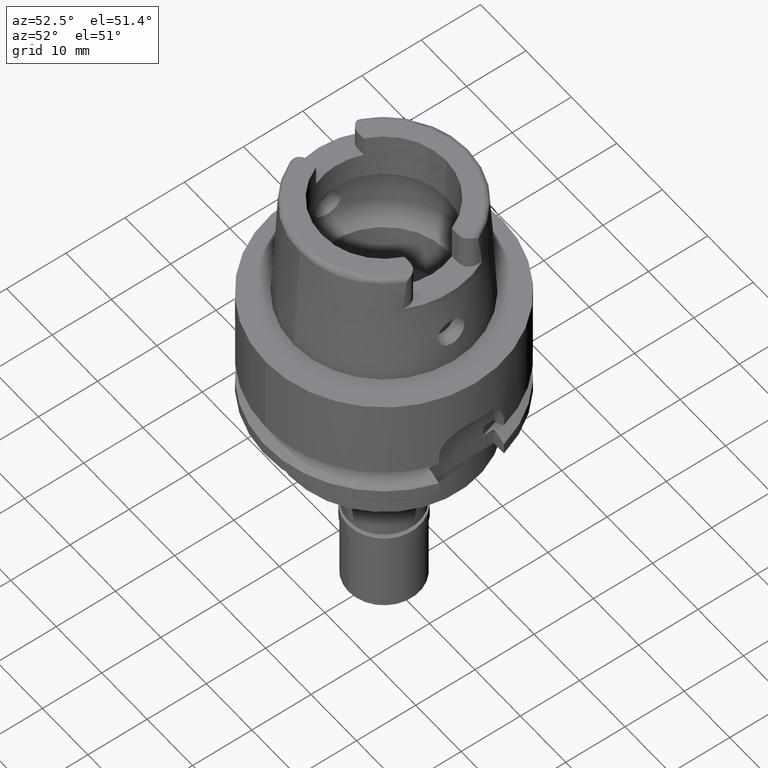
[diagram: clean part render]
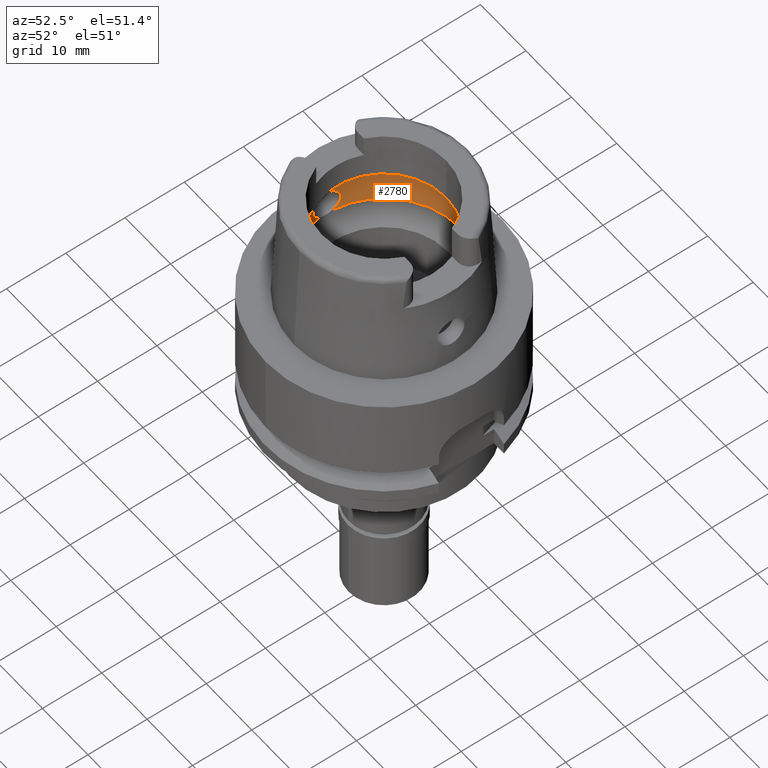
[diagram: same view with one face highlighted and labeled with its STEP entity id]
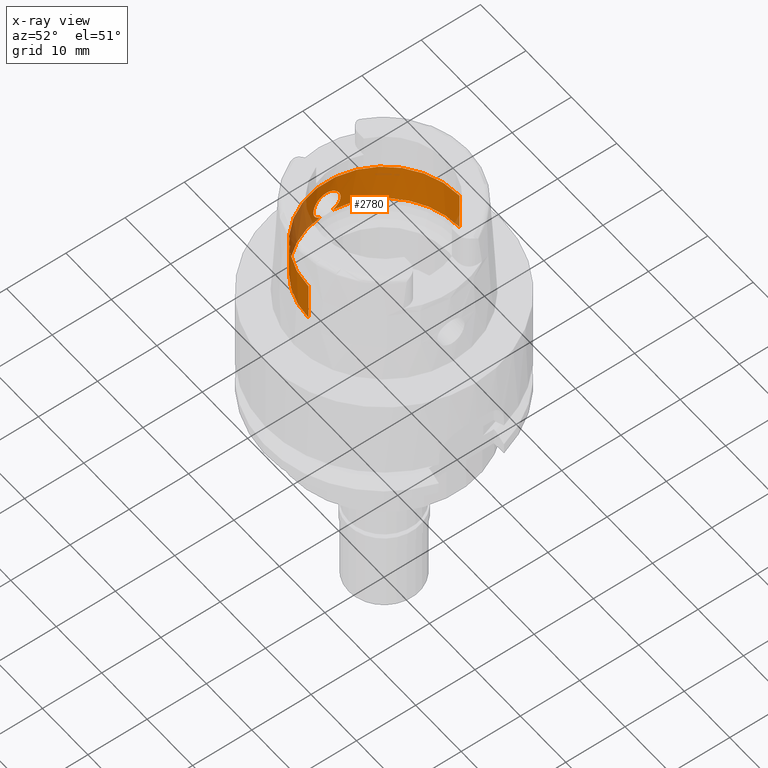
[diagram: x-ray of the same camera — body ghosted, the highlighted face saturated]
A machine part, auxiliary view. The second image highlights one B-rep face of the part: STEP entity #2780.
The next image is the same camera in x-ray: the body ghosted, the highlighted face saturated — about 11% of this face is hidden behind the body in this view.
In plain terms, the highlighted cylindrical surface (partial cylindrical patch) has radius 12.75 mm, axis along (0, 0, 1).
Its self-contained STEP definition (entity closure, byte-faithful):
#19 = CARTESIAN_POINT ( 'NONE',  ( -12.54148017970318207, -2.296657985021727910, 5.872034827122684320 ) ) ;
#36 = AXIS2_PLACEMENT_3D ( 'NONE', #4328, #3968, #5199 ) ;
#60 = DIRECTION ( 'NONE',  ( 0.0000000000000000000, 5.251609281303000335E-14, 1.000000000000000000 ) ) ;
#66 = LINE ( 'NONE', #358, #986 ) ;
#162 = CARTESIAN_POINT ( 'NONE',  ( -12.58234815095433490, 2.060967630271303364, 4.978898497668545531 ) ) ;
#212 = CARTESIAN_POINT ( 'NONE',  ( -12.71370925307437005, -0.9657940196729556392, 8.091397405141254495 ) ) ;
#215 = CARTESIAN_POINT ( 'NONE',  ( -12.67342107082569136, 1.396795518636539279, 4.168152430983958823 ) ) ;
#243 = CARTESIAN_POINT ( 'NONE',  ( -12.58088779415982295, 2.069786624219965621, 4.996984874372552454 ) ) ;
#259 = CARTESIAN_POINT ( 'NONE',  ( -12.74252708845689241, -0.4388710766372737049, 8.258650815778116439 ) ) ;
#262 = CARTESIAN_POINT ( 'NONE',  ( -12.54081290418515415, 2.300265515362289737, 5.877896904667117894 ) ) ;
#286 = CARTESIAN_POINT ( 'NONE',  ( -12.74019180359966974, -0.5023035908611745981, 8.245431463440205277 ) ) ;
#290 = CARTESIAN_POINT ( 'NONE',  ( -12.68327569418629075, 1.308086619414797092, 7.897773305990880566 ) ) ;
#311 = CARTESIAN_POINT ( 'NONE',  ( -12.60091537316904464, -1.944102522079118822, 7.229014269558279970 ) ) ;
#314 = CARTESIAN_POINT ( 'NONE',  ( -12.72734841511456239, 0.7591135067273639958, 8.171132231329629292 ) ) ;
#334 = CARTESIAN_POINT ( 'NONE',  ( -12.55239739492236239, -2.236088535620658124, 6.538626042431965324 ) ) ;
#338 = CARTESIAN_POINT ( 'NONE',  ( -12.66928323577454663, 1.432365327722411541, 7.799539186262888890 ) ) ;
#358 = CARTESIAN_POINT ( 'NONE',  ( 0.0000000000000000000, -12.75000000000000000, 3.933312163512999504 ) ) ;
#359 = CARTESIAN_POINT ( 'NONE',  ( -12.70998420979999999, -1.009356917307999923, 3.933312163512999504 ) ) ;
#362 = CARTESIAN_POINT ( 'NONE',  ( -12.64071954532341735, -1.665643291147724581, 7.586129303350567454 ) ) ;
#394 = CARTESIAN_POINT ( 'NONE',  ( -12.69524213687614989, -1.182604493118782241, 4.023122441451612019 ) ) ;
#397 = CARTESIAN_POINT ( 'NONE',  ( -12.60074742617265464, 1.945194591811169493, 7.227284890344897406 ) ) ;
#433 = DIRECTION ( 'NONE',  ( 0.0000000000000000000, -5.251609281303000335E-14, 1.000000000000000000 ) ) ;
#471 = ORIENTED_EDGE ( 'NONE', *, *, #1588, .T. ) ;
#556 = EDGE_CURVE ( 'NONE', #3890, #4955, #1530, .T. ) ;
#585 = CYLINDRICAL_SURFACE ( 'NONE', #1228, 12.75000000000000000 ) ;
#609 = CARTESIAN_POINT ( 'NONE',  ( -12.75000000000000355, -0.1232955019582576139, 8.300000000000002487 ) ) ;
#647 = CARTESIAN_POINT ( 'NONE',  ( -12.55025637655821669, 2.248069450114834833, 6.486258590179722283 ) ) ;
#666 = CARTESIAN_POINT ( 'NONE',  ( -12.58703336588032506, 2.032482332563968264, 7.077119839792592515 ) ) ;
#690 = CARTESIAN_POINT ( 'NONE',  ( -12.72795728128235559, -0.7488340797194402709, 8.174693640447596721 ) ) ;
#719 = CARTESIAN_POINT ( 'NONE',  ( -12.72850808154838376, -0.7394332862062809042, 8.177913538725009701 ) ) ;
#745 = CARTESIAN_POINT ( 'NONE',  ( -12.57962204570575437, -2.077434335363026907, 5.012946770202115765 ) ) ;
#750 = CARTESIAN_POINT ( 'NONE',  ( -12.63406899693238294, 1.715452932363266569, 7.532072049116044887 ) ) ;
#769 = CARTESIAN_POINT ( 'NONE',  ( -12.55912664086201680, -2.198379263546960338, 5.320866996806764782 ) ) ;
#772 = CARTESIAN_POINT ( 'NONE',  ( -12.69473673177439466, 1.189557444804520081, 7.972700653167720475 ) ) ;
#792 = CARTESIAN_POINT ( 'NONE',  ( -12.61237958801630832, -1.868489752136395898, 7.341565194408953943 ) ) ;
#819 = CARTESIAN_POINT ( 'NONE',  ( -12.55364315353211957, -2.229124748674669032, 6.566756391729422049 ) ) ;
#936 = CARTESIAN_POINT ( 'NONE',  ( 0.0000000000000000000, 0.0000000000000000000, -59.79999999999999716 ) ) ;
#968 = CARTESIAN_POINT ( 'NONE',  ( -12.59485593607884191, 1.984425298710568608, 4.835953568459093077 ) ) ;
#972 = VERTEX_POINT ( 'NONE', #1899 ) ;
#986 = VECTOR ( 'NONE', #433, 1000.000000000000000 ) ;
#987 = CARTESIAN_POINT ( 'NONE',  ( -12.70998420979999999, 1.009356917307999923, 3.933312163512999504 ) ) ;
#997 = CARTESIAN_POINT ( 'NONE',  ( -12.54457947337423462, 2.279515789508200552, 5.692220183645891218 ) ) ;
#1020 = CARTESIAN_POINT ( 'NONE',  ( -12.70998420979999999, 1.009356917307999923, 3.933312163512999504 ) ) ;
#1043 = CARTESIAN_POINT ( 'NONE',  ( -12.54596000839778114, 2.272073775621781255, 6.358784124242084168 ) ) ;
#1073 = CARTESIAN_POINT ( 'NONE',  ( -12.57489092042872514, 2.106762639285188587, 6.925054285917330965 ) ) ;
#1080 = VERTEX_POINT ( 'NONE', #359 ) ;
#1097 = CARTESIAN_POINT ( 'NONE',  ( -12.75000000000000000, 0.0000000000000000000, 8.300000000000000711 ) ) ;
#1100 = CARTESIAN_POINT ( 'NONE',  ( -12.70919181892019267, 1.018762221139785096, 8.063073491699430662 ) ) ;
#1148 = CARTESIAN_POINT ( 'NONE',  ( -12.56261983430587215, -2.178318896566281193, 5.258837980250286925 ) ) ;
#1155 = CARTESIAN_POINT ( 'NONE',  ( -12.59842913563653077, 1.960190017391717499, 7.203244068961787150 ) ) ;
#1176 = CARTESIAN_POINT ( 'NONE',  ( -12.63496809226845485, -1.708818649349721941, 7.539464926994788208 ) ) ;
#1195 = CARTESIAN_POINT ( 'NONE',  ( 0.0000000000000000000, 0.0000000000000000000, 3.933312163512999504 ) ) ;
#1201 = CARTESIAN_POINT ( 'NONE',  ( -12.65275917258536786, -1.571383832252013946, 7.680138149302682571 ) ) ;
#1225 = CARTESIAN_POINT ( 'NONE',  ( -12.55781007688380413, -2.205759636404365676, 6.652340893931214083 ) ) ;
#1228 = AXIS2_PLACEMENT_3D ( 'NONE', #936, #2599, #4722 ) ;
#1265 = LINE ( 'NONE', #2936, #3332 ) ;
#1436 = CARTESIAN_POINT ( 'NONE',  ( -12.55282624754528698, 2.234055926618104149, 5.449449623030155010 ) ) ;
#1454 = CARTESIAN_POINT ( 'NONE',  ( -12.66507753597532115, -1.469358509663974299, 7.770645237010898043 ) ) ;
#1457 = CARTESIAN_POINT ( 'NONE',  ( -12.57979453712135154, 2.076392291241293542, 5.010751046610106840 ) ) ;
#1476 = CARTESIAN_POINT ( 'NONE',  ( -12.73074849545827547, -0.7000510758547183743, 8.190983650985206310 ) ) ;
#1511 = CARTESIAN_POINT ( 'NONE',  ( -12.61864162327912986, 1.825725469032277282, 7.399205395910363414 ) ) ;
#1530 = B_SPLINE_CURVE_WITH_KNOTS ( 'NONE', 3,
 ( #1020, #4812, #3963, #215, #1928, #4322, #4345, #1878, #968, #4394, #3558, #2229, #162, #243, #2635, #5193, #1457, #3905, #1826, #1436, #5162, #2687, #4756, #997, #3132, #262, #2661, #3104, #1905, #1043, #2256, #2713, #647, #3581, #3160, #4843, #1073, #4421, #666, #2332, #4017, #1155, #3187, #2828, #397, #1621, #4100, #1511, #1955, #4504, #2356, #3635, #2407, #750, #5278, #4046, #2466, #4966, #5301, #3274, #1537, #4476, #338, #4866, #2854, #2011, #4445, #290, #772, #1100, #2385, #3684, #3213, #2769, #3656, #4889, #314, #5353, #2062, #4075 ),
 .UNSPECIFIED., .F., .F.,
 ( 4, 2, 2, 2, 2, 2, 1, 1, 2, 2, 2, 2, 2, 2, 2, 2, 1, 2, 2, 2, 2, 1, 1, 1, 2, 2, 2, 2, 1, 1, 2, 2, 2, 2, 2, 1, 1, 2, 2, 2, 2, 1, 1, 2, 2, 4 ),
 ( 0.0000000000000000000, 0.06249999999999251987, 0.1249999999999850397, 0.1874999999999775735, 0.2187499999999738265, 0.2343749999999719669, 0.2421874999999710232, 0.2460937499999701628, 0.2480468749999700240, 0.2499999999999699130, 0.3124999999999579225, 0.3437499999999517053, 0.3593749999999485967, 0.3749999999999455436, 0.4374999999999334421, 0.4687499999999271694, 0.4843749999999242828, 0.4921874999999230060, 0.4999999999999217293, 0.5624999999999126254, 0.5937499999999079625, 0.6093749999999056310, 0.6171874999999045208, 0.6210937499999039657, 0.6230468749999039657, 0.6249999999999039657, 0.6562499999999051870, 0.6718749999999056310, 0.6796874999999058531, 0.6835937499999060751, 0.6855468749999060751, 0.6874999999999060751, 0.7187499999999055200, 0.7343749999999051870, 0.7421874999999049649, 0.7460937499999046318, 0.7480468749999044098, 0.7490234374999048539, 0.7499999999999052980, 0.8124999999999323874, 0.8437499999999459321, 0.8593749999999525935, 0.8671874999999557021, 0.8710937499999571454, 0.8749999999999585887, 1.000000000000000000 ),
 .UNSPECIFIED. ) ;
#1533 = CARTESIAN_POINT ( 'NONE',  ( -12.66943899526039274, -1.431011956414761199, 7.800612365376442092 ) ) ;
#1537 = CARTESIAN_POINT ( 'NONE',  ( -12.66795178435076963, 1.443991592244741273, 7.790233384727709876 ) ) ;
#1560 = CARTESIAN_POINT ( 'NONE',  ( -12.54120439842161439, -2.298212068785446149, 5.903875515317918321 ) ) ;
#1588 = EDGE_CURVE ( 'NONE', #3890, #3657, #3529, .T. ) ;
#1592 = CARTESIAN_POINT ( 'NONE',  ( -12.56257850676685095, -2.178740741521114188, 6.739449554181223156 ) ) ;
#1621 = CARTESIAN_POINT ( 'NONE',  ( -12.60522162145990066, 1.916156714429792629, 7.273167380317437036 ) ) ;
#1673 = CARTESIAN_POINT ( 'NONE',  ( -12.63563140623329240, -1.703902752141519317, 7.544904155298002735 ) ) ;
#1675 = CARTESIAN_POINT ( 'NONE',  ( 0.0000000000000000000, 0.0000000000000000000, 10.69831216350999981 ) ) ;
#1747 = CARTESIAN_POINT ( 'NONE',  ( 0.0000000000000000000, 12.75000000000000000, 3.933312163512999504 ) ) ;
#1783 = CARTESIAN_POINT ( 'NONE',  ( -12.75000000000000000, 0.0000000000000000000, 8.300000000000000711 ) ) ;
#1826 = CARTESIAN_POINT ( 'NONE',  ( -12.56187419853418419, 2.182840110083087648, 5.264027543199527592 ) ) ;
#1875 = CARTESIAN_POINT ( 'NONE',  ( -12.68520778266399951, -1.283333305785098633, 7.909000996030330910 ) ) ;
#1878 = CARTESIAN_POINT ( 'NONE',  ( -12.59970419640353256, 1.953912374158201404, 4.784932855592898271 ) ) ;
#1899 = CARTESIAN_POINT ( 'NONE',  ( 0.0000000000000000000, -12.75000000000000000, 10.69831216350999981 ) ) ;
#1905 = CARTESIAN_POINT ( 'NONE',  ( -12.54348375520701708, 2.285854396121656418, 6.262775262223848394 ) ) ;
#1928 = CARTESIAN_POINT ( 'NONE',  ( -12.66002377977506299, 1.516789949124395021, 4.262699921375642020 ) ) ;
#1955 = CARTESIAN_POINT ( 'NONE',  ( -12.62165102803630745, 1.804816494781097180, 7.426155628704304235 ) ) ;
#1979 = CARTESIAN_POINT ( 'NONE',  ( -12.54073783438190759, -2.300885557207824839, 5.999586117959124998 ) ) ;
#2008 = CARTESIAN_POINT ( 'NONE',  ( -12.57168851685723965, -2.125068528179912875, 5.119046469636792551 ) ) ;
#2011 = CARTESIAN_POINT ( 'NONE',  ( -12.66990472515780830, 1.426880942171057320, 7.803887759267862378 ) ) ;
#2036 = CARTESIAN_POINT ( 'NONE',  ( -12.58852658665747626, -2.024334378339336382, 7.101320211410822481 ) ) ;
#2058 = CARTESIAN_POINT ( 'NONE',  ( -12.66031865575811288, -1.514382210868038925, 4.260522311198210232 ) ) ;
#2062 = CARTESIAN_POINT ( 'NONE',  ( -12.74999999999999822, 0.2454129203991414210, 8.300000000000002487 ) ) ;
#2103 = ORIENTED_EDGE ( 'NONE', *, *, #556, .F. ) ;
#2136 = DIRECTION ( 'NONE',  ( 0.0000000000000000000, 1.000000000000000000, 0.0000000000000000000 ) ) ;
#2184 = VERTEX_POINT ( 'NONE', #4959 ) ;
#2229 = CARTESIAN_POINT ( 'NONE',  ( -12.58368079438198528, 2.052912315962793333, 4.962839345020976012 ) ) ;
#2256 = CARTESIAN_POINT ( 'NONE',  ( -12.54737898903669091, 2.264160825312498737, 6.406714995350192510 ) ) ;
#2270 = EDGE_CURVE ( 'NONE', #2552, #1080, #3444, .T. ) ;
#2300 = ORIENTED_EDGE ( 'NONE', *, *, #4741, .F. ) ;
#2308 = CARTESIAN_POINT ( 'NONE',  ( -12.68070979276334320, -1.327630010748268585, 7.878758684082139752 ) ) ;
#2332 = CARTESIAN_POINT ( 'NONE',  ( -12.59098572248810655, 2.007769082100414160, 7.122959970139262076 ) ) ;
#2344 = DIRECTION ( 'NONE',  ( 0.0000000000000000000, 0.0000000000000000000, -1.000000000000000000 ) ) ;
#2356 = CARTESIAN_POINT ( 'NONE',  ( -12.62889673681356939, 1.753233671745248579, 7.488889331161828977 ) ) ;
#2382 = CARTESIAN_POINT ( 'NONE',  ( -12.60227304271632320, -1.935287334250604063, 7.242875625466763445 ) ) ;
#2385 = CARTESIAN_POINT ( 'NONE',  ( -12.71355410309606171, 0.9629638853355878547, 8.089541103009537437 ) ) ;
#2404 = CARTESIAN_POINT ( 'NONE',  ( -12.62085798745405896, -1.810654883468420184, 7.419765259373888533 ) ) ;
#2407 = CARTESIAN_POINT ( 'NONE',  ( -12.63319235934285700, 1.721899587906365658, 7.524823050719082751 ) ) ;
#2430 = CARTESIAN_POINT ( 'NONE',  ( -12.62722194013531229, -1.765924650657525241, 7.475678127646277815 ) ) ;
#2462 = CARTESIAN_POINT ( 'NONE',  ( -12.54286094178943145, -2.289321175210386805, 6.255906219300009674 ) ) ;
#2466 = CARTESIAN_POINT ( 'NONE',  ( -12.65338985473301392, 1.566653324830893146, 7.685165133112471736 ) ) ;
#2483 = CARTESIAN_POINT ( 'NONE',  ( -12.63451869292693530, -1.712138067072594749, 7.535769908466067868 ) ) ;
#2552 = VERTEX_POINT ( 'NONE', #5331 ) ;
#2596 = B_SPLINE_CURVE_WITH_KNOTS ( 'NONE', 3,
 ( #1097, #609, #4441, #259, #286, #3632, #2765, #1476, #5297, #719, #690, #3603, #212, #2706, #2795, #1875, #2308, #3183, #3578, #5246, #3555, #5219, #1533, #4471, #1454, #4809, #1201, #2924, #4942, #362, #4576, #3653, #1673, #1176, #2483, #2430, #2404, #792, #4523, #4071, #4962, #2382, #4122, #311, #5012, #2036, #4987, #4095, #1592, #1225, #2850, #819, #334, #4608, #5324, #2462, #4545, #1979, #1560, #19, #3233, #4152, #3293, #4915, #769, #1148, #3269, #2008, #3710, #2825, #4501, #4175, #745, #3349, #5374, #2058, #3679, #394, #4596, #2873 ),
 .UNSPECIFIED., .F., .F.,
 ( 4, 2, 2, 1, 1, 2, 2, 2, 2, 1, 1, 1, 1, 2, 2, 2, 2, 2, 1, 1, 2, 2, 2, 2, 1, 1, 2, 2, 2, 2, 1, 2, 2, 2, 2, 2, 2, 2, 2, 1, 1, 1, 2, 2, 2, 2, 4 ),
 ( 0.0000000000000000000, 0.06250000000007767398, 0.09375000000011649015, 0.1093750000001357803, 0.1171875000001453837, 0.1210937500001500744, 0.1250000000001547651, 0.1875000000002299272, 0.2187500000002677580, 0.2343750000002866041, 0.2421875000002957912, 0.2460937500003002043, 0.2480468750003022305, 0.2490234375003032852, 0.2500000000003043676, 0.2812500000002912115, 0.2968750000002846612, 0.3046875000002814970, 0.3085937500002799982, 0.3105468750002792211, 0.3115234375002788325, 0.3125000000002784994, 0.3437500000002634559, 0.3593750000002557399, 0.3671875000002519096, 0.3710937500002501888, 0.3730468750002494671, 0.3750000000002486900, 0.4375000000002256528, 0.4687500000002140510, 0.4843750000002080558, 0.4921875000002052802, 0.5000000000002025047, 0.5625000000001795231, 0.5937500000001681988, 0.6093750000001625367, 0.6250000000001568745, 0.6875000000001330047, 0.7187500000001211253, 0.7343750000001151301, 0.7421875000001120215, 0.7460937500001104672, 0.7480468750001095790, 0.7500000000001085798, 0.8750000000000544009, 0.9375000000000272005, 1.000000000000000000 ),
 .UNSPECIFIED. ) ;
#2599 = DIRECTION ( 'NONE',  ( 0.0000000000000000000, 0.0000000000000000000, 1.000000000000000000 ) ) ;
#2635 = CARTESIAN_POINT ( 'NONE',  ( -12.58028215422026186, 2.073445599560009178, 5.004594978854125742 ) ) ;
#2661 = CARTESIAN_POINT ( 'NONE',  ( -12.54025635551086815, 2.303581670315554053, 6.006076208451377241 ) ) ;
#2687 = CARTESIAN_POINT ( 'NONE',  ( -12.54713703286341442, 2.265510976512016938, 5.601985227723667471 ) ) ;
#2706 = CARTESIAN_POINT ( 'NONE',  ( -12.69916636182645675, -1.136948078876701240, 8.000381054850672413 ) ) ;
#2713 = CARTESIAN_POINT ( 'NONE',  ( -12.54906925074089763, 2.254710943049325955, 6.454469176465027047 ) ) ;
#2765 = CARTESIAN_POINT ( 'NONE',  ( -12.73371138812087899, -0.6448050996160938908, 8.208196888131741531 ) ) ;
#2769 = CARTESIAN_POINT ( 'NONE',  ( -12.72509113188656826, 0.7960374702974875039, 8.157928036174014963 ) ) ;
#2780 = ADVANCED_FACE ( 'NONE', ( #5221 ), #585, .F. ) ;
#2795 = CARTESIAN_POINT ( 'NONE',  ( -12.69385885562985017, -1.195160727021379987, 7.966343699080645102 ) ) ;
#2825 = CARTESIAN_POINT ( 'NONE',  ( -12.57770901754924076, -2.088990794785702043, 5.037583694276121626 ) ) ;
#2828 = CARTESIAN_POINT ( 'NONE',  ( -12.60026767344784915, 1.948304579681932491, 7.222345921212944830 ) ) ;
#2850 = CARTESIAN_POINT ( 'NONE',  ( -12.55559772095123883, -2.218194946547938251, 6.609198076480863548 ) ) ;
#2854 = CARTESIAN_POINT ( 'NONE',  ( -12.66981250790781210, 1.427697623441940733, 7.803241461143133328 ) ) ;
#2873 = CARTESIAN_POINT ( 'NONE',  ( -12.70998420979999999, -1.009356917307999923, 3.933312163512999504 ) ) ;
#2924 = CARTESIAN_POINT ( 'NONE',  ( -12.64652718844190993, -1.620772081961007860, 7.632061792821305701 ) ) ;
#2936 = CARTESIAN_POINT ( 'NONE',  ( 0.0000000000000000000, 12.75000000000000000, 3.933312163512999504 ) ) ;
#2944 = ORIENTED_EDGE ( 'NONE', *, *, #5232, .T. ) ;
#3104 = CARTESIAN_POINT ( 'NONE',  ( -12.54231519719592036, 2.292313217031529238, 6.198573596062768587 ) ) ;
#3132 = CARTESIAN_POINT ( 'NONE',  ( -12.54391997727507579, 2.283121956455001822, 5.720067338643723964 ) ) ;
#3160 = CARTESIAN_POINT ( 'NONE',  ( -12.55611043792193016, 2.215281805804307336, 6.628873869336890934 ) ) ;
#3165 = EDGE_CURVE ( 'NONE', #2184, #972, #4572, .T. ) ;
#3183 = CARTESIAN_POINT ( 'NONE',  ( -12.67516034439818462, -1.379450759483749733, 7.840576031495367637 ) ) ;
#3187 = CARTESIAN_POINT ( 'NONE',  ( -12.59953010816379404, 1.953076998213736593, 7.214705941931602418 ) ) ;
#3213 = CARTESIAN_POINT ( 'NONE',  ( -12.72217203720086154, 0.8416028933340108376, 8.140813276152657707 ) ) ;
#3233 = CARTESIAN_POINT ( 'NONE',  ( -12.54227226213633273, -2.292237686279176234, 5.808533618525150821 ) ) ;
#3269 = CARTESIAN_POINT ( 'NONE',  ( -12.56855048007319375, -2.143591147036384204, 5.165664586025773275 ) ) ;
#3274 = CARTESIAN_POINT ( 'NONE',  ( -12.66719579549732089, 1.450547493074052952, 7.784940186693381392 ) ) ;
#3293 = CARTESIAN_POINT ( 'NONE',  ( -12.54580580725195205, -2.272713846860505260, 5.627358586559244813 ) ) ;
#3332 = VECTOR ( 'NONE', #60, 1000.000000000000000 ) ;
#3349 = CARTESIAN_POINT ( 'NONE',  ( -12.59226813258256250, -2.000868896112060646, 4.852294421739790309 ) ) ;
#3416 = EDGE_CURVE ( 'NONE', #2552, #972, #66, .T. ) ;
#3444 = CIRCLE ( 'NONE', #36, 12.75000000000000000 ) ;
#3529 = CIRCLE ( 'NONE', #5087, 12.75000000000000533 ) ;
#3555 = CARTESIAN_POINT ( 'NONE',  ( -12.67024334658411888, -1.423871047363515441, 7.806265982559652983 ) ) ;
#3558 = CARTESIAN_POINT ( 'NONE',  ( -12.58645395994708949, 2.036101980413342005, 4.930003023167911280 ) ) ;
#3578 = CARTESIAN_POINT ( 'NONE',  ( -12.67231017184535879, -1.405365555812152945, 7.820741990036808922 ) ) ;
#3581 = CARTESIAN_POINT ( 'NONE',  ( -12.55096186583171658, 2.244119818694408242, 6.504111767440593717 ) ) ;
#3603 = CARTESIAN_POINT ( 'NONE',  ( -12.72156501078378277, -0.8564421981446395105, 8.137288797020330477 ) ) ;
#3632 = CARTESIAN_POINT ( 'NONE',  ( -12.73598829085667106, -0.5973260092756816908, 8.221321560972791431 ) ) ;
#3635 = CARTESIAN_POINT ( 'NONE',  ( -12.63188587703130850, 1.731481913402438844, 7.513978851899389078 ) ) ;
#3653 = CARTESIAN_POINT ( 'NONE',  ( -12.63661917808289026, -1.696562633112641549, 7.552986467798616488 ) ) ;
#3656 = CARTESIAN_POINT ( 'NONE',  ( -12.72627803646842537, 0.7767713716102075949, 8.164872342923262138 ) ) ;
#3657 = VERTEX_POINT ( 'NONE', #1747 ) ;
#3679 = CARTESIAN_POINT ( 'NONE',  ( -12.67351258846197126, -1.395982933710886664, 4.167561756177056154 ) ) ;
#3684 = CARTESIAN_POINT ( 'NONE',  ( -12.71941341205077691, 0.8816594870524430139, 8.124510982625684719 ) ) ;
#3706 = AXIS2_PLACEMENT_3D ( 'NONE', #1675, #4990, #2136 ) ;
#3710 = CARTESIAN_POINT ( 'NONE',  ( -12.57565180909763392, -2.101369628644536469, 5.064717990378048817 ) ) ;
#3890 = VERTEX_POINT ( 'NONE', #987 ) ;
#3905 = CARTESIAN_POINT ( 'NONE',  ( -12.56975691033567166, 2.137101222008246371, 5.138791657040721716 ) ) ;
#3958 = EDGE_LOOP ( 'NONE', ( #2103, #471, #2944, #5168, #4291, #4020, #2300 ) ) ;
#3963 = CARTESIAN_POINT ( 'NONE',  ( -12.69522456478026839, 1.182781068262972246, 4.023201532388341661 ) ) ;
#3968 = DIRECTION ( 'NONE',  ( 0.0000000000000000000, 0.0000000000000000000, -1.000000000000000000 ) ) ;
#4017 = CARTESIAN_POINT ( 'NONE',  ( -12.59589782753135800, 1.976469304565448670, 7.176489214987150866 ) ) ;
#4020 = ORIENTED_EDGE ( 'NONE', *, *, #2270, .T. ) ;
#4034 = DIRECTION ( 'NONE',  ( -0.9968615066513395462, 0.07916524841634305087, 0.0000000000000000000 ) ) ;
#4046 = CARTESIAN_POINT ( 'NONE',  ( -12.64529814851026757, 1.632448923676449670, 7.624242865846575512 ) ) ;
#4071 = CARTESIAN_POINT ( 'NONE',  ( -12.60602594154092770, -1.910735199771198101, 7.280352458395346282 ) ) ;
#4075 = CARTESIAN_POINT ( 'NONE',  ( -12.75000000000000000, 0.0000000000000000000, 8.300000000000000711 ) ) ;
#4095 = CARTESIAN_POINT ( 'NONE',  ( -12.56621575071277519, -2.157862760070673680, 6.798624111703841066 ) ) ;
#4100 = CARTESIAN_POINT ( 'NONE',  ( -12.61015574966314290, 1.883744265880894941, 7.321251094089249456 ) ) ;
#4122 = CARTESIAN_POINT ( 'NONE',  ( -12.60145510495800458, -1.940600284585849211, 7.234536846998736337 ) ) ;
#4152 = CARTESIAN_POINT ( 'NONE',  ( -12.54282995365511155, -2.289142965310880129, 5.774822069991595086 ) ) ;
#4175 = CARTESIAN_POINT ( 'NONE',  ( -12.57920903691073278, -2.079933012930202274, 5.018217453481257806 ) ) ;
#4291 = ORIENTED_EDGE ( 'NONE', *, *, #3416, .F. ) ;
#4322 = CARTESIAN_POINT ( 'NONE',  ( -12.62912367609745701, 1.755590390272984136, 4.504417941223506361 ) ) ;
#4328 = CARTESIAN_POINT ( 'NONE',  ( 0.0000000000000000000, 0.0000000000000000000, 3.933312163512999504 ) ) ;
#4345 = CARTESIAN_POINT ( 'NONE',  ( -12.61597503673442766, 1.847142520756328565, 4.623514826364409025 ) ) ;
#4394 = CARTESIAN_POINT ( 'NONE',  ( -12.58844657527022548, 2.023962559555781304, 4.907153934557650921 ) ) ;
#4421 = CARTESIAN_POINT ( 'NONE',  ( -12.57947267818954451, 2.079210348371804074, 6.985682835937371493 ) ) ;
#4441 = CARTESIAN_POINT ( 'NONE',  ( -12.74813177211422044, -0.2490945725680925038, 8.290064892533116847 ) ) ;
#4445 = CARTESIAN_POINT ( 'NONE',  ( -12.66978276017375116, 1.427965187571736516, 7.803031044933113947 ) ) ;
#4471 = CARTESIAN_POINT ( 'NONE',  ( -12.66847226417505468, -1.439569635241942036, 7.793809256246323258 ) ) ;
#4476 = CARTESIAN_POINT ( 'NONE',  ( -12.66887461134724191, 1.435943347430388206, 7.796685427540723801 ) ) ;
#4501 = CARTESIAN_POINT ( 'NONE',  ( -12.57860687024238011, -2.083571398396348417, 5.025962765234088359 ) ) ;
#4504 = CARTESIAN_POINT ( 'NONE',  ( -12.62643630549985652, 1.770860166622455489, 7.467778894980310334 ) ) ;
#4523 = CARTESIAN_POINT ( 'NONE',  ( -12.60973137646774234, -1.886224361302431873, 7.316435848905662453 ) ) ;
#4545 = CARTESIAN_POINT ( 'NONE',  ( -12.54090783142878429, -2.300015037330819911, 6.063645008742856390 ) ) ;
#4572 = CIRCLE ( 'NONE', #3706, 12.75000000000000000 ) ;
#4576 = CARTESIAN_POINT ( 'NONE',  ( -12.63887358538179662, -1.679678216713075489, 7.571314167821662444 ) ) ;
#4596 = CARTESIAN_POINT ( 'NONE',  ( -12.70377775258646302, -1.087509622128521869, 3.971481436987521541 ) ) ;
#4608 = CARTESIAN_POINT ( 'NONE',  ( -12.55188136475381278, -2.238971414210444433, 6.526564537481405637 ) ) ;
#4722 = DIRECTION ( 'NONE',  ( 0.0000000000000000000, 1.000000000000000000, 0.0000000000000000000 ) ) ;
#4741 = EDGE_CURVE ( 'NONE', #4955, #1080, #2596, .T. ) ;
#4756 = CARTESIAN_POINT ( 'NONE',  ( -12.54620739868054358, 2.270603278290280524, 5.632193797510705480 ) ) ;
#4809 = CARTESIAN_POINT ( 'NONE',  ( -12.65629950568206574, -1.542379593399889837, 7.706491997104420122 ) ) ;
#4812 = CARTESIAN_POINT ( 'NONE',  ( -12.70377836211261346, 1.087501946848558054, 3.971477688430633979 ) ) ;
#4843 = CARTESIAN_POINT ( 'NONE',  ( -12.56252174924536469, 2.179673932146326987, 6.745465324645908645 ) ) ;
#4866 = CARTESIAN_POINT ( 'NONE',  ( -12.66966758339895271, 1.428979255641347423, 7.802226536154233116 ) ) ;
#4889 = CARTESIAN_POINT ( 'NONE',  ( -12.72705505374572788, 0.7639867897850175504, 8.169417020754941916 ) ) ;
#4915 = CARTESIAN_POINT ( 'NONE',  ( -12.55002877173352083, -2.249908781186333862, 5.505750502257422241 ) ) ;
#4942 = CARTESIAN_POINT ( 'NONE',  ( -12.64429627964435277, -1.638210256524900599, 7.614608967083897006 ) ) ;
#4955 = VERTEX_POINT ( 'NONE', #1783 ) ;
#4959 = CARTESIAN_POINT ( 'NONE',  ( 0.0000000000000000000, 12.75000000000000000, 10.69831216350999981 ) ) ;
#4962 = CARTESIAN_POINT ( 'NONE',  ( -12.60423994467652697, -1.922467677167612132, 7.262712822685366554 ) ) ;
#4966 = CARTESIAN_POINT ( 'NONE',  ( -12.66214891352784200, 1.493761944605686010, 7.749205903935629358 ) ) ;
#4987 = CARTESIAN_POINT ( 'NONE',  ( -12.57850235462224653, -2.085529438762880439, 6.978394405355876629 ) ) ;
#4990 = DIRECTION ( 'NONE',  ( 0.0000000000000000000, 0.0000000000000000000, 1.000000000000000000 ) ) ;
#5012 = CARTESIAN_POINT ( 'NONE',  ( -12.60075452504238314, -1.945145776853398623, 7.227366389604896746 ) ) ;
#5087 = AXIS2_PLACEMENT_3D ( 'NONE', #1195, #2344, #4034 ) ;
#5162 = CARTESIAN_POINT ( 'NONE',  ( -12.55027295000120979, 2.248236601720628336, 5.510862844112084602 ) ) ;
#5168 = ORIENTED_EDGE ( 'NONE', *, *, #3165, .T. ) ;
#5193 = CARTESIAN_POINT ( 'NONE',  ( -12.57988288920679132, 2.075858497500431721, 5.009636779351922975 ) ) ;
#5199 = DIRECTION ( 'NONE',  ( 0.0000000000000000000, -1.000000000000000000, 0.0000000000000000000 ) ) ;
#5219 = CARTESIAN_POINT ( 'NONE',  ( -12.66982719712773786, -1.427571384372034125, 7.803342868617719752 ) ) ;
#5221 = FACE_OUTER_BOUND ( 'NONE', #3958, .T. ) ;
#5232 = EDGE_CURVE ( 'NONE', #3657, #2184, #1265, .T. ) ;
#5246 = CARTESIAN_POINT ( 'NONE',  ( -12.67086622347638070, -1.418320124601941457, 7.810637121890429135 ) ) ;
#5278 = CARTESIAN_POINT ( 'NONE',  ( -12.63430760609992554, 1.713697641095146773, 7.534044128622078951 ) ) ;
#5297 = CARTESIAN_POINT ( 'NONE',  ( -12.72941300443055113, -0.7236865848230620291, 8.183196439594619065 ) ) ;
#5301 = CARTESIAN_POINT ( 'NONE',  ( -12.66450551636956412, 1.473688727915585028, 7.765967024652566941 ) ) ;
#5324 = CARTESIAN_POINT ( 'NONE',  ( -12.54608717432324028, -2.271395471003604172, 6.384197585252048057 ) ) ;
#5331 = CARTESIAN_POINT ( 'NONE',  ( 0.0000000000000000000, -12.75000000000000000, 3.933312163512999504 ) ) ;
#5353 = CARTESIAN_POINT ( 'NONE',  ( -12.74260356411903850, 0.5010057723290685106, 8.260335992439403086 ) ) ;
#5374 = CARTESIAN_POINT ( 'NONE',  ( -12.61374938215622166, -1.874657955967034217, 4.624426668672058760 ) ) ;